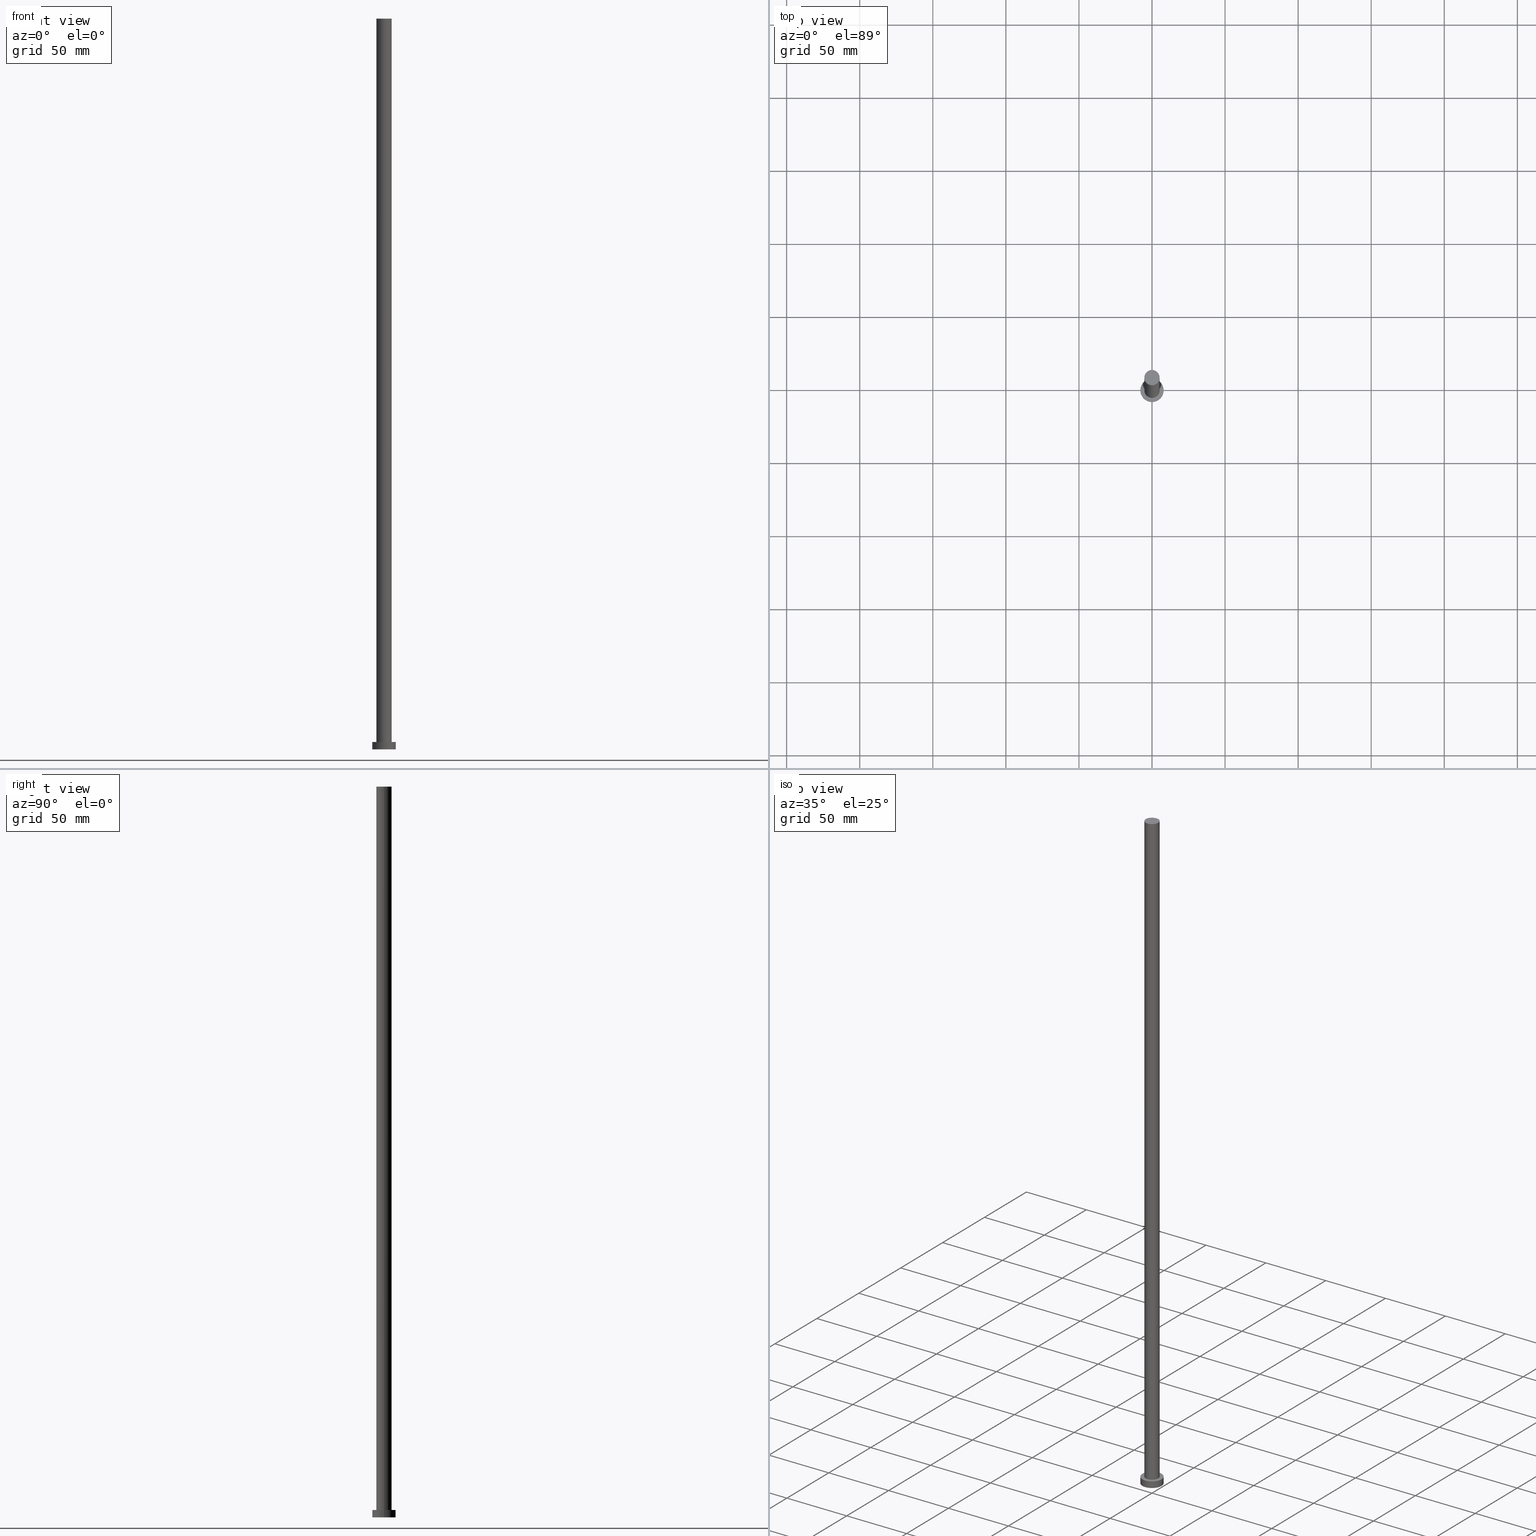
[diagram: canonical four-view strip — front | top / right | iso, engineering-drawing reading convention]
A machine part, canonical four-view strip (front | top / right | iso — engineering-drawing reading convention). The complete STEP part file that produces these views, byte-faithful:
ISO-10303-21;
HEADER;
FILE_DESCRIPTION (( 'STEP AP203' ),
    '1' );
FILE_NAME ('9131.STEP',
    '2023-02-13T13:12:33',
    ( '' ),
    ( '' ),
    'SwSTEP 2.0',
    'SolidWorks 2019',
    '' );
FILE_SCHEMA (( 'CONFIG_CONTROL_DESIGN' ));
ENDSEC;

DATA;
#1 = ORIENTED_EDGE ( 'NONE', *, *, #166, .T. ) ;
#2 = DIRECTION ( 'NONE',  ( 0.000000000000000000, 0.000000000000000000, 1.000000000000000000 ) ) ;
#3 = VERTEX_POINT ( 'NONE', #38 ) ;
#4 = EDGE_LOOP ( 'NONE', ( #231, #76 ) ) ;
#5 = AXIS2_PLACEMENT_3D ( 'NONE', #93, #62, #60 ) ;
#6 = COORDINATED_UNIVERSAL_TIME_OFFSET ( 1, 0, .AHEAD. ) ;
#7 = UNCERTAINTY_MEASURE_WITH_UNIT (LENGTH_MEASURE( 1.000000000000000082E-05 ), #107, 'distance_accuracy_value', 'NONE');
#8 = DIRECTION ( 'NONE',  ( 1.000000000000000000, 0.000000000000000000, 0.000000000000000000 ) ) ;
#9 = DATE_AND_TIME ( #181, #249 ) ;
#10 = PERSON_AND_ORGANIZATION_ROLE ( 'creator' ) ;
#11 = CALENDAR_DATE ( 2023, 13, 2 ) ;
#12 = CARTESIAN_POINT ( 'NONE',  ( -5.250000000000000000, 0.000000000000000000, 500.0000000000000000 ) ) ;
#13 = CARTESIAN_POINT ( 'NONE',  ( 8.000000000000000000, 9.797174393178825657E-16, 5.000000000000000000 ) ) ;
#14 = CC_DESIGN_PERSON_AND_ORGANIZATION_ASSIGNMENT ( #81, #88, ( #49 ) ) ;
#15 = DIRECTION ( 'NONE',  ( 0.000000000000000000, 0.000000000000000000, 1.000000000000000000 ) ) ;
#16 = LOCAL_TIME ( 14, 12, 33.00000000000000000, #48 ) ;
#17 = ORIENTED_EDGE ( 'NONE', *, *, #75, .T. ) ;
#18 = EDGE_LOOP ( 'NONE', ( #95, #1, #43, #97 ) ) ;
#19 =( NAMED_UNIT ( * ) PLANE_ANGLE_UNIT ( ) SI_UNIT ( $, .RADIAN. ) );
#20 = PLANE ( 'NONE',  #232 ) ;
#21 = CIRCLE ( 'NONE', #41, 8.000000000000000000 ) ;
#22 = ORIENTED_EDGE ( 'NONE', *, *, #110, .F. ) ;
#23 =( NAMED_UNIT ( * ) SI_UNIT ( $, .STERADIAN. ) SOLID_ANGLE_UNIT ( ) );
#24 = DIRECTION ( 'NONE',  ( 0.000000000000000000, 0.000000000000000000, 1.000000000000000000 ) ) ;
#25 = DIRECTION ( 'NONE',  ( 1.000000000000000000, 0.000000000000000000, 0.000000000000000000 ) ) ;
#26 = ORIENTED_EDGE ( 'NONE', *, *, #119, .T. ) ;
#27 = APPROVAL ( #187, 'NEUR�EN�' ) ;
#28 = PERSON_AND_ORGANIZATION ( #30, #123 ) ;
#29 = CIRCLE ( 'NONE', #169, 5.250000000000000000 ) ;
#30 = PERSON ( 'NEUR�EN�', 'NEUR�EN�', 'NEUR�EN�', ('NEUR�EN�'), ('NEUR�EN�'), ('NEUR�EN�') ) ;
#31 = CARTESIAN_POINT ( 'NONE',  ( -5.250000000000000000, 0.000000000000000000, 5.000000000000000000 ) ) ;
#32 = ADVANCED_FACE ( 'NONE', ( #74 ), #20, .F. ) ;
#33 = LOCAL_TIME ( 14, 12, 33.00000000000000000, #104 ) ;
#34 = DIRECTION ( 'NONE',  ( 0.000000000000000000, 0.000000000000000000, 1.000000000000000000 ) ) ;
#35 = VERTEX_POINT ( 'NONE', #115 ) ;
#36 = DIRECTION ( 'NONE',  ( 1.000000000000000000, 0.000000000000000000, 0.000000000000000000 ) ) ;
#37 = ORIENTED_EDGE ( 'NONE', *, *, #251, .F. ) ;
#38 = CARTESIAN_POINT ( 'NONE',  ( 5.250000000000000000, 6.429395695523604153E-16, 500.0000000000000000 ) ) ;
#39 = CARTESIAN_POINT ( 'NONE',  ( 0.000000000000000000, 0.000000000000000000, 0.000000000000000000 ) ) ;
#40 = VERTEX_POINT ( 'NONE', #240 ) ;
#41 = AXIS2_PLACEMENT_3D ( 'NONE', #132, #80, #173 ) ;
#42 = DIRECTION ( 'NONE',  ( 0.000000000000000000, 0.000000000000000000, 1.000000000000000000 ) ) ;
#43 = ORIENTED_EDGE ( 'NONE', *, *, #110, .T. ) ;
#44 = ADVANCED_FACE ( 'NONE', ( #204 ), #98, .T. ) ;
#45 = DIRECTION ( 'NONE',  ( 0.000000000000000000, 0.000000000000000000, 1.000000000000000000 ) ) ;
#46 = CARTESIAN_POINT ( 'NONE',  ( 0.000000000000000000, 0.000000000000000000, 5.000000000000000000 ) ) ;
#47 = AXIS2_PLACEMENT_3D ( 'NONE', #159, #141, #179 ) ;
#48 = COORDINATED_UNIVERSAL_TIME_OFFSET ( 1, 0, .AHEAD. ) ;
#49 = PRODUCT_DEFINITION_FORMATION_WITH_SPECIFIED_SOURCE ( 'LIBOVOLN�', '', #176, .NOT_KNOWN. ) ;
#50 = DIRECTION ( 'NONE',  ( -0.000000000000000000, -0.000000000000000000, -1.000000000000000000 ) ) ;
#51 = APPLICATION_PROTOCOL_DEFINITION ( 'international standard', 'config_control_design', 1994, #53 ) ;
#52 = SECURITY_CLASSIFICATION ( '', '', #233 ) ;
#53 = APPLICATION_CONTEXT ( 'configuration controlled 3d designs of mechanical parts and assemblies' ) ;
#54 = EDGE_CURVE ( 'NONE', #35, #201, #21, .T. ) ;
#55 = PLANE ( 'NONE',  #246 ) ;
#56 = DIRECTION ( 'NONE',  ( 0.000000000000000000, 0.000000000000000000, 1.000000000000000000 ) ) ;
#57 = EDGE_LOOP ( 'NONE', ( #131, #77, #217, #128 ) ) ;
#58 = LOCAL_TIME ( 14, 12, 33.00000000000000000, #6 ) ;
#59 = DIRECTION ( 'NONE',  ( -0.000000000000000000, -0.000000000000000000, -1.000000000000000000 ) ) ;
#60 = DIRECTION ( 'NONE',  ( -1.000000000000000000, 0.000000000000000000, 0.000000000000000000 ) ) ;
#61 = FACE_OUTER_BOUND ( 'NONE', #214, .T. ) ;
#62 = DIRECTION ( 'NONE',  ( -0.000000000000000000, -0.000000000000000000, -1.000000000000000000 ) ) ;
#63 = AXIS2_PLACEMENT_3D ( 'NONE', #165, #197, #212 ) ;
#64 = ORIENTED_EDGE ( 'NONE', *, *, #166, .F. ) ;
#65 = PERSON_AND_ORGANIZATION_ROLE ( 'creator' ) ;
#66 = LINE ( 'NONE', #68, #180 ) ;
#67 = FACE_OUTER_BOUND ( 'NONE', #116, .T. ) ;
#68 = CARTESIAN_POINT ( 'NONE',  ( 5.250000000000000000, 6.429395695523604153E-16, 500.0000000000000000 ) ) ;
#69 = CARTESIAN_POINT ( 'NONE',  ( 8.000000000000000000, 9.797174393178825657E-16, 5.000000000000000000 ) ) ;
#70 = CC_DESIGN_PERSON_AND_ORGANIZATION_ASSIGNMENT ( #28, #101, ( #176 ) ) ;
#71 = DATE_AND_TIME ( #153, #86 ) ;
#72 = PRODUCT_DEFINITION ( 'NEZN�M�', '', #49, #208 ) ;
#73 = COORDINATED_UNIVERSAL_TIME_OFFSET ( 1, 0, .AHEAD. ) ;
#74 = FACE_OUTER_BOUND ( 'NONE', #4, .T. ) ;
#75 = EDGE_CURVE ( 'NONE', #3, #171, #150, .T. ) ;
#76 = ORIENTED_EDGE ( 'NONE', *, *, #184, .F. ) ;
#77 = ORIENTED_EDGE ( 'NONE', *, *, #244, .T. ) ;
#78 = FACE_OUTER_BOUND ( 'NONE', #18, .T. ) ;
#79 = DATE_AND_TIME ( #11, #58 ) ;
#80 = DIRECTION ( 'NONE',  ( 0.000000000000000000, 0.000000000000000000, 1.000000000000000000 ) ) ;
#81 = PERSON_AND_ORGANIZATION ( #30, #123 ) ;
#82 = DIRECTION ( 'NONE',  ( -0.000000000000000000, -0.000000000000000000, -1.000000000000000000 ) ) ;
#83 = DATE_AND_TIME ( #229, #33 ) ;
#84 = CARTESIAN_POINT ( 'NONE',  ( 0.000000000000000000, 0.000000000000000000, 0.000000000000000000 ) ) ;
#85 = AXIS2_PLACEMENT_3D ( 'NONE', #145, #59, #189 ) ;
#86 = LOCAL_TIME ( 14, 12, 33.00000000000000000, #73 ) ;
#87 = APPROVAL ( #253, 'NEUR�EN�' ) ;
#88 = PERSON_AND_ORGANIZATION_ROLE ( 'design_supplier' ) ;
#89 = PLANE ( 'NONE',  #63 ) ;
#90 = CIRCLE ( 'NONE', #186, 8.000000000000000000 ) ;
#91 = VERTEX_POINT ( 'NONE', #219 ) ;
#92 = ADVANCED_FACE ( 'NONE', ( #78 ), #199, .T. ) ;
#93 = CARTESIAN_POINT ( 'NONE',  ( 0.000000000000000000, 0.000000000000000000, 5.000000000000000000 ) ) ;
#94 = AXIS2_PLACEMENT_3D ( 'NONE', #84, #56, #254 ) ;
#95 = ORIENTED_EDGE ( 'NONE', *, *, #75, .F. ) ;
#96 = PRODUCT_RELATED_PRODUCT_CATEGORY ( 'detail', '', ( #176 ) ) ;
#97 = ORIENTED_EDGE ( 'NONE', *, *, #161, .F. ) ;
#98 = CYLINDRICAL_SURFACE ( 'NONE', #5, 8.000000000000000000 ) ;
#99 = APPROVAL_DATE_TIME ( #206, #155 ) ;
#100 = CC_DESIGN_PERSON_AND_ORGANIZATION_ASSIGNMENT ( #182, #10, ( #49 ) ) ;
#101 = PERSON_AND_ORGANIZATION_ROLE ( 'design_owner' ) ;
#102 = LINE ( 'NONE', #209, #178 ) ;
#103 = EDGE_CURVE ( 'NONE', #255, #91, #139, .T. ) ;
#104 = COORDINATED_UNIVERSAL_TIME_OFFSET ( 1, 0, .AHEAD. ) ;
#105 = AXIS2_PLACEMENT_3D ( 'NONE', #224, #45, #25 ) ;
#106 = DIRECTION ( 'NONE',  ( -0.000000000000000000, -0.000000000000000000, -1.000000000000000000 ) ) ;
#107 =( LENGTH_UNIT ( ) NAMED_UNIT ( * ) SI_UNIT ( .MILLI., .METRE. ) );
#108 = CARTESIAN_POINT ( 'NONE',  ( -8.000000000000000000, 0.000000000000000000, 0.000000000000000000 ) ) ;
#109 = APPLICATION_CONTEXT ( 'configuration controlled 3d designs of mechanical parts and assemblies' ) ;
#110 = EDGE_CURVE ( 'NONE', #40, #238, #29, .T. ) ;
#111 = CARTESIAN_POINT ( 'NONE',  ( 0.000000000000000000, 0.000000000000000000, 5.000000000000000000 ) ) ;
#112 = CYLINDRICAL_SURFACE ( 'NONE', #210, 5.250000000000000000 ) ;
#113 = ORIENTED_EDGE ( 'NONE', *, *, #244, .F. ) ;
#114 = ADVANCED_FACE ( 'NONE', ( #61 ), #112, .T. ) ;
#115 = CARTESIAN_POINT ( 'NONE',  ( -8.000000000000000000, 0.000000000000000000, 5.000000000000000000 ) ) ;
#116 = EDGE_LOOP ( 'NONE', ( #113, #134, #26, #137 ) ) ;
#117 = COORDINATED_UNIVERSAL_TIME_OFFSET ( 1, 0, .AHEAD. ) ;
#118 = CALENDAR_DATE ( 2023, 13, 2 ) ;
#119 = EDGE_CURVE ( 'NONE', #35, #255, #183, .T. ) ;
#120 = MECHANICAL_CONTEXT ( 'NONE', #53, 'mechanical' ) ;
#121 = DIRECTION ( 'NONE',  ( 1.000000000000000000, 0.000000000000000000, 0.000000000000000000 ) ) ;
#122 = VECTOR ( 'NONE', #50, 1000.000000000000000 ) ;
#123 = ORGANIZATION ( 'NEUR�EN�', 'NEUR�EN�', '' ) ;
#124 = PERSON_AND_ORGANIZATION ( #30, #123 ) ;
#125 = CARTESIAN_POINT ( 'NONE',  ( 0.000000000000000000, 0.000000000000000000, 5.000000000000000000 ) ) ;
#126 =( GEOMETRIC_REPRESENTATION_CONTEXT ( 3 ) GLOBAL_UNCERTAINTY_ASSIGNED_CONTEXT ( ( #7 ) ) GLOBAL_UNIT_ASSIGNED_CONTEXT ( ( #107, #19, #23 ) ) REPRESENTATION_CONTEXT ( 'NONE', 'WORKASPACE' ) );
#127 = CC_DESIGN_PERSON_AND_ORGANIZATION_ASSIGNMENT ( #129, #250, ( #52 ) ) ;
#128 = ORIENTED_EDGE ( 'NONE', *, *, #119, .F. ) ;
#129 = PERSON_AND_ORGANIZATION ( #30, #123 ) ;
#130 = DIRECTION ( 'NONE',  ( 0.000000000000000000, 0.000000000000000000, 1.000000000000000000 ) ) ;
#131 = ORIENTED_EDGE ( 'NONE', *, *, #230, .F. ) ;
#132 = CARTESIAN_POINT ( 'NONE',  ( 0.000000000000000000, 0.000000000000000000, 5.000000000000000000 ) ) ;
#133 = AXIS2_PLACEMENT_3D ( 'NONE', #192, #15, #36 ) ;
#134 = ORIENTED_EDGE ( 'NONE', *, *, #54, .F. ) ;
#135 = PRODUCT_DEFINITION_SHAPE ( 'NONE', 'NONE',  #72 ) ;
#136 = EDGE_CURVE ( 'NONE', #238, #40, #146, .T. ) ;
#137 = ORIENTED_EDGE ( 'NONE', *, *, #103, .T. ) ;
#138 = AXIS2_PLACEMENT_3D ( 'NONE', #39, #2, #8 ) ;
#139 = CIRCLE ( 'NONE', #138, 8.000000000000000000 ) ;
#140 = ORIENTED_EDGE ( 'NONE', *, *, #136, .F. ) ;
#141 = DIRECTION ( 'NONE',  ( -0.000000000000000000, -0.000000000000000000, -1.000000000000000000 ) ) ;
#142 = APPROVAL_STATUS ( 'not_yet_approved' ) ;
#143 = DIRECTION ( 'NONE',  ( -1.000000000000000000, 0.000000000000000000, 0.000000000000000000 ) ) ;
#144 = CYLINDRICAL_SURFACE ( 'NONE', #85, 8.000000000000000000 ) ;
#145 = CARTESIAN_POINT ( 'NONE',  ( 0.000000000000000000, 0.000000000000000000, 5.000000000000000000 ) ) ;
#146 = CIRCLE ( 'NONE', #195, 5.250000000000000000 ) ;
#147 = SHAPE_DEFINITION_REPRESENTATION ( #135, #218 ) ;
#148 = DIRECTION ( 'NONE',  ( 1.000000000000000000, 0.000000000000000000, -0.000000000000000000 ) ) ;
#149 = EDGE_LOOP ( 'NONE', ( #222, #235 ) ) ;
#150 = CIRCLE ( 'NONE', #252, 5.250000000000000000 ) ;
#151 = VECTOR ( 'NONE', #106, 1000.000000000000000 ) ;
#152 = CC_DESIGN_APPROVAL ( #87, ( #52 ) ) ;
#153 = CALENDAR_DATE ( 2023, 13, 2 ) ;
#154 = FACE_OUTER_BOUND ( 'NONE', #149, .T. ) ;
#155 = APPROVAL ( #142, 'NEUR�EN�' ) ;
#156 = DIRECTION ( 'NONE',  ( 0.000000000000000000, 0.000000000000000000, 1.000000000000000000 ) ) ;
#157 = CARTESIAN_POINT ( 'NONE',  ( 0.000000000000000000, 0.000000000000000000, 500.0000000000000000 ) ) ;
#158 = ORIENTED_EDGE ( 'NONE', *, *, #251, .T. ) ;
#159 = CARTESIAN_POINT ( 'NONE',  ( 0.000000000000000000, 0.000000000000000000, 500.0000000000000000 ) ) ;
#160 = CC_DESIGN_APPROVAL ( #155, ( #49 ) ) ;
#161 = EDGE_CURVE ( 'NONE', #171, #238, #102, .T. ) ;
#162 = DATE_TIME_ROLE ( 'creation_date' ) ;
#163 = APPROVAL_DATE_TIME ( #79, #27 ) ;
#164 = CC_DESIGN_PERSON_AND_ORGANIZATION_ASSIGNMENT ( #242, #65, ( #72 ) ) ;
#165 = CARTESIAN_POINT ( 'NONE',  ( 0.000000000000000000, 0.000000000000000000, 5.000000000000000000 ) ) ;
#166 = EDGE_CURVE ( 'NONE', #3, #40, #66, .T. ) ;
#167 = APPROVAL_DATE_TIME ( #71, #87 ) ;
#168 = MANIFOLD_SOLID_BREP ( 'P�idat vysunut�m3', #248 ) ;
#169 = AXIS2_PLACEMENT_3D ( 'NONE', #111, #156, #236 ) ;
#170 = ADVANCED_FACE ( 'NONE', ( #67 ), #144, .T. ) ;
#171 = VERTEX_POINT ( 'NONE', #12 ) ;
#172 = CARTESIAN_POINT ( 'NONE',  ( 0.000000000000000000, 0.000000000000000000, 500.0000000000000000 ) ) ;
#173 = DIRECTION ( 'NONE',  ( 1.000000000000000000, 0.000000000000000000, 0.000000000000000000 ) ) ;
#174 = CIRCLE ( 'NONE', #94, 8.000000000000000000 ) ;
#175 = EDGE_LOOP ( 'NONE', ( #140, #22 ) ) ;
#176 = PRODUCT ( '9131', '9131', '', ( #120 ) ) ;
#177 = DIRECTION ( 'NONE',  ( 1.000000000000000000, 0.000000000000000000, -0.000000000000000000 ) ) ;
#178 = VECTOR ( 'NONE', #188, 1000.000000000000000 ) ;
#179 = DIRECTION ( 'NONE',  ( -1.000000000000000000, 0.000000000000000000, 0.000000000000000000 ) ) ;
#180 = VECTOR ( 'NONE', #82, 1000.000000000000000 ) ;
#181 = CALENDAR_DATE ( 2023, 13, 2 ) ;
#182 = PERSON_AND_ORGANIZATION ( #30, #123 ) ;
#183 = LINE ( 'NONE', #245, #122 ) ;
#184 = EDGE_CURVE ( 'NONE', #91, #255, #174, .T. ) ;
#185 = PERSON_AND_ORGANIZATION ( #30, #123 ) ;
#186 = AXIS2_PLACEMENT_3D ( 'NONE', #125, #130, #213 ) ;
#187 = APPROVAL_STATUS ( 'not_yet_approved' ) ;
#188 = DIRECTION ( 'NONE',  ( -0.000000000000000000, -0.000000000000000000, -1.000000000000000000 ) ) ;
#189 = DIRECTION ( 'NONE',  ( -1.000000000000000000, 0.000000000000000000, 0.000000000000000000 ) ) ;
#190 = CC_DESIGN_DATE_AND_TIME_ASSIGNMENT ( #83, #193, ( #52 ) ) ;
#191 = APPROVAL_PERSON_ORGANIZATION ( #243, #155, #225 ) ;
#192 = CARTESIAN_POINT ( 'NONE',  ( 0.000000000000000000, 0.000000000000000000, 500.0000000000000000 ) ) ;
#193 = DATE_TIME_ROLE ( 'classification_date' ) ;
#194 = EDGE_LOOP ( 'NONE', ( #158, #17 ) ) ;
#195 = AXIS2_PLACEMENT_3D ( 'NONE', #46, #205, #121 ) ;
#196 = APPROVAL_PERSON_ORGANIZATION ( #124, #87, #247 ) ;
#197 = DIRECTION ( 'NONE',  ( 0.000000000000000000, 0.000000000000000000, 1.000000000000000000 ) ) ;
#198 = ORIENTED_EDGE ( 'NONE', *, *, #161, .T. ) ;
#199 = CYLINDRICAL_SURFACE ( 'NONE', #47, 5.250000000000000000 ) ;
#200 = CC_DESIGN_DATE_AND_TIME_ASSIGNMENT ( #9, #162, ( #72 ) ) ;
#201 = VERTEX_POINT ( 'NONE', #69 ) ;
#202 = APPROVAL_PERSON_ORGANIZATION ( #185, #27, #227 ) ;
#203 = CARTESIAN_POINT ( 'NONE',  ( 0.000000000000000000, 0.000000000000000000, 0.000000000000000000 ) ) ;
#204 = FACE_OUTER_BOUND ( 'NONE', #57, .T. ) ;
#205 = DIRECTION ( 'NONE',  ( 0.000000000000000000, 0.000000000000000000, 1.000000000000000000 ) ) ;
#206 = DATE_AND_TIME ( #118, #16 ) ;
#207 = APPLICATION_PROTOCOL_DEFINITION ( 'international standard', 'config_control_design', 1994, #109 ) ;
#208 = DESIGN_CONTEXT ( 'detailed design', #109, 'design' ) ;
#209 = CARTESIAN_POINT ( 'NONE',  ( -5.250000000000000000, 0.000000000000000000, 500.0000000000000000 ) ) ;
#210 = AXIS2_PLACEMENT_3D ( 'NONE', #157, #237, #143 ) ;
#211 = ADVANCED_FACE ( 'NONE', ( #215, #154 ), #89, .T. ) ;
#212 = DIRECTION ( 'NONE',  ( 1.000000000000000000, 0.000000000000000000, -0.000000000000000000 ) ) ;
#213 = DIRECTION ( 'NONE',  ( 1.000000000000000000, 0.000000000000000000, 0.000000000000000000 ) ) ;
#214 = EDGE_LOOP ( 'NONE', ( #64, #37, #198, #221 ) ) ;
#215 = FACE_BOUND ( 'NONE', #175, .T. ) ;
#216 = FACE_OUTER_BOUND ( 'NONE', #194, .T. ) ;
#217 = ORIENTED_EDGE ( 'NONE', *, *, #184, .T. ) ;
#218 = ADVANCED_BREP_SHAPE_REPRESENTATION ( '9131', ( #168, #105 ), #126 ) ;
#219 = CARTESIAN_POINT ( 'NONE',  ( 8.000000000000000000, 9.797174393178825657E-16, 0.000000000000000000 ) ) ;
#220 = DIRECTION ( 'NONE',  ( 1.000000000000000000, 0.000000000000000000, 0.000000000000000000 ) ) ;
#221 = ORIENTED_EDGE ( 'NONE', *, *, #136, .T. ) ;
#222 = ORIENTED_EDGE ( 'NONE', *, *, #54, .T. ) ;
#223 = ADVANCED_FACE ( 'NONE', ( #216 ), #55, .T. ) ;
#224 = CARTESIAN_POINT ( 'NONE',  ( 0.000000000000000000, 0.000000000000000000, 0.000000000000000000 ) ) ;
#225 = APPROVAL_ROLE ( '' ) ;
#226 = CC_DESIGN_SECURITY_CLASSIFICATION ( #52, ( #49 ) ) ;
#227 = APPROVAL_ROLE ( '' ) ;
#228 = LINE ( 'NONE', #13, #151 ) ;
#229 = CALENDAR_DATE ( 2023, 13, 2 ) ;
#230 = EDGE_CURVE ( 'NONE', #201, #35, #90, .T. ) ;
#231 = ORIENTED_EDGE ( 'NONE', *, *, #103, .F. ) ;
#232 = AXIS2_PLACEMENT_3D ( 'NONE', #203, #42, #177 ) ;
#233 = SECURITY_CLASSIFICATION_LEVEL ( 'unclassified' ) ;
#234 = CARTESIAN_POINT ( 'NONE',  ( 0.000000000000000000, 0.000000000000000000, 500.0000000000000000 ) ) ;
#235 = ORIENTED_EDGE ( 'NONE', *, *, #230, .T. ) ;
#236 = DIRECTION ( 'NONE',  ( 1.000000000000000000, 0.000000000000000000, 0.000000000000000000 ) ) ;
#237 = DIRECTION ( 'NONE',  ( -0.000000000000000000, -0.000000000000000000, -1.000000000000000000 ) ) ;
#238 = VERTEX_POINT ( 'NONE', #31 ) ;
#239 = CC_DESIGN_APPROVAL ( #27, ( #72 ) ) ;
#240 = CARTESIAN_POINT ( 'NONE',  ( 5.250000000000000000, 6.429395695523604153E-16, 5.000000000000000000 ) ) ;
#241 = CIRCLE ( 'NONE', #133, 5.250000000000000000 ) ;
#242 = PERSON_AND_ORGANIZATION ( #30, #123 ) ;
#243 = PERSON_AND_ORGANIZATION ( #30, #123 ) ;
#244 = EDGE_CURVE ( 'NONE', #201, #91, #228, .T. ) ;
#245 = CARTESIAN_POINT ( 'NONE',  ( -8.000000000000000000, 0.000000000000000000, 5.000000000000000000 ) ) ;
#246 = AXIS2_PLACEMENT_3D ( 'NONE', #234, #34, #148 ) ;
#247 = APPROVAL_ROLE ( '' ) ;
#248 = CLOSED_SHELL ( 'NONE', ( #92, #44, #170, #211, #32, #114, #223 ) ) ;
#249 = LOCAL_TIME ( 14, 12, 33.00000000000000000, #117 ) ;
#250 = PERSON_AND_ORGANIZATION_ROLE ( 'classification_officer' ) ;
#251 = EDGE_CURVE ( 'NONE', #171, #3, #241, .T. ) ;
#252 = AXIS2_PLACEMENT_3D ( 'NONE', #172, #24, #220 ) ;
#253 = APPROVAL_STATUS ( 'not_yet_approved' ) ;
#254 = DIRECTION ( 'NONE',  ( 1.000000000000000000, 0.000000000000000000, 0.000000000000000000 ) ) ;
#255 = VERTEX_POINT ( 'NONE', #108 ) ;
ENDSEC;
END-ISO-10303-21;
